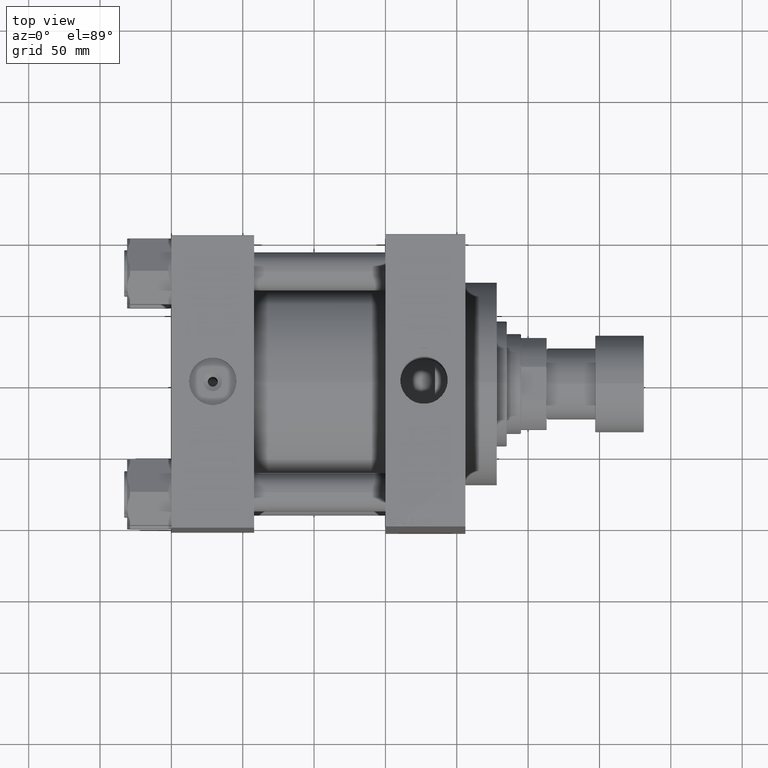
[diagram: clean part render]
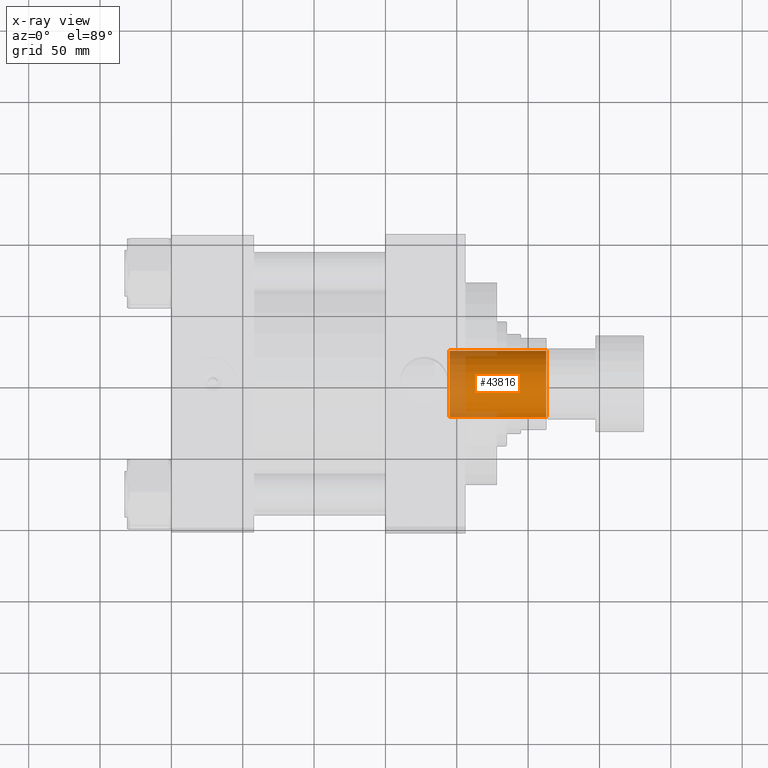
[diagram: x-ray — body ghosted, one internal face saturated and labeled with its STEP entity id]
A machine part, top view, then the same camera in x-ray: the body is ghosted and one INTERNAL B-rep face — a face not visible from any outside direction — is saturated and labeled: STEP entity #43816.
In plain terms, the highlighted cylindrical surface (edge-blend (fillet) strip) has radius 23.25 mm, axis along (1, 0, 0).
Its self-contained STEP definition (entity closure, byte-faithful):
#1857 = CARTESIAN_POINT ( 'NONE',  ( 0.000000000000000000, 0.000000000000000000, 205.0000000000000000 ) ) ;
#2897 = VECTOR ( 'NONE', #9005, 1000.000000000000000 ) ;
#5520 = VERTEX_POINT ( 'NONE', #15335 ) ;
#5577 = EDGE_CURVE ( 'NONE', #10555, #33933, #23859, .T. ) ;
#8498 = EDGE_CURVE ( 'NONE', #5520, #10555, #12190, .T. ) ;
#8739 = VECTOR ( 'NONE', #21893, 1000.000000000000000 ) ;
#9005 = DIRECTION ( 'NONE',  ( -0.000000000000000000, -0.000000000000000000, 1.000000000000000000 ) ) ;
#9075 = DIRECTION ( 'NONE',  ( -0.000000000000000000, -0.000000000000000000, 1.000000000000000000 ) ) ;
#10555 = VERTEX_POINT ( 'NONE', #42428 ) ;
#12190 = CIRCLE ( 'NONE', #24668, 23.24999999999998579 ) ;
#12720 = DIRECTION ( 'NONE',  ( 1.000000000000000000, 0.000000000000000000, 0.000000000000000000 ) ) ;
#12897 = AXIS2_PLACEMENT_3D ( 'NONE', #36263, #26041, #14345 ) ;
#14345 = DIRECTION ( 'NONE',  ( 1.000000000000000000, 0.000000000000000000, 0.000000000000000000 ) ) ;
#15192 = CARTESIAN_POINT ( 'NONE',  ( -23.24999999999999289, 2.847303808017595350E-15, 204.6999999999999886 ) ) ;
#15335 = CARTESIAN_POINT ( 'NONE',  ( -23.24999999999998579, 2.847303808017594561E-15, 136.9999999999999716 ) ) ;
#15698 = AXIS2_PLACEMENT_3D ( 'NONE', #1857, #41768, #38607 ) ;
#15970 = FACE_OUTER_BOUND ( 'NONE', #26173, .T. ) ;
#16023 = EDGE_CURVE ( 'NONE', #18493, #33933, #20708, .T. ) ;
#18229 = CARTESIAN_POINT ( 'NONE',  ( -23.24999999999999289, 2.847303808017595350E-15, 205.0000000000000000 ) ) ;
#18493 = VERTEX_POINT ( 'NONE', #15192 ) ;
#20708 = CIRCLE ( 'NONE', #12897, 23.24999999999999289 ) ;
#21185 = CARTESIAN_POINT ( 'NONE',  ( 0.000000000000000000, 0.000000000000000000, 136.9999999999999716 ) ) ;
#21893 = DIRECTION ( 'NONE',  ( -0.000000000000000000, -0.000000000000000000, 1.000000000000000000 ) ) ;
#23859 = LINE ( 'NONE', #26776, #2897 ) ;
#24668 = AXIS2_PLACEMENT_3D ( 'NONE', #21185, #9075, #12720 ) ;
#26041 = DIRECTION ( 'NONE',  ( 0.000000000000000000, 0.000000000000000000, 1.000000000000000000 ) ) ;
#26173 = EDGE_LOOP ( 'NONE', ( #40634, #29354, #30344, #44867 ) ) ;
#26465 = CARTESIAN_POINT ( 'NONE',  ( 23.24999999999999289, 0.000000000000000000, 204.6999999999999886 ) ) ;
#26776 = CARTESIAN_POINT ( 'NONE',  ( 23.24999999999999289, 0.000000000000000000, 205.0000000000000000 ) ) ;
#29354 = ORIENTED_EDGE ( 'NONE', *, *, #38316, .T. ) ;
#30344 = ORIENTED_EDGE ( 'NONE', *, *, #16023, .T. ) ;
#33933 = VERTEX_POINT ( 'NONE', #26465 ) ;
#36263 = CARTESIAN_POINT ( 'NONE',  ( 0.000000000000000000, 0.000000000000000000, 204.6999999999999886 ) ) ;
#36490 = LINE ( 'NONE', #18229, #8739 ) ;
#38316 = EDGE_CURVE ( 'NONE', #5520, #18493, #36490, .T. ) ;
#38607 = DIRECTION ( 'NONE',  ( 1.000000000000000000, 0.000000000000000000, 0.000000000000000000 ) ) ;
#40634 = ORIENTED_EDGE ( 'NONE', *, *, #8498, .F. ) ;
#41768 = DIRECTION ( 'NONE',  ( -0.000000000000000000, -0.000000000000000000, 1.000000000000000000 ) ) ;
#42252 = CYLINDRICAL_SURFACE ( 'NONE', #15698, 23.24999999999999289 ) ;
#42428 = CARTESIAN_POINT ( 'NONE',  ( 23.24999999999998579, 0.000000000000000000, 136.9999999999999716 ) ) ;
#43816 = ADVANCED_FACE ( 'NONE', ( #15970 ), #42252, .F. ) ;
#44867 = ORIENTED_EDGE ( 'NONE', *, *, #5577, .F. ) ;